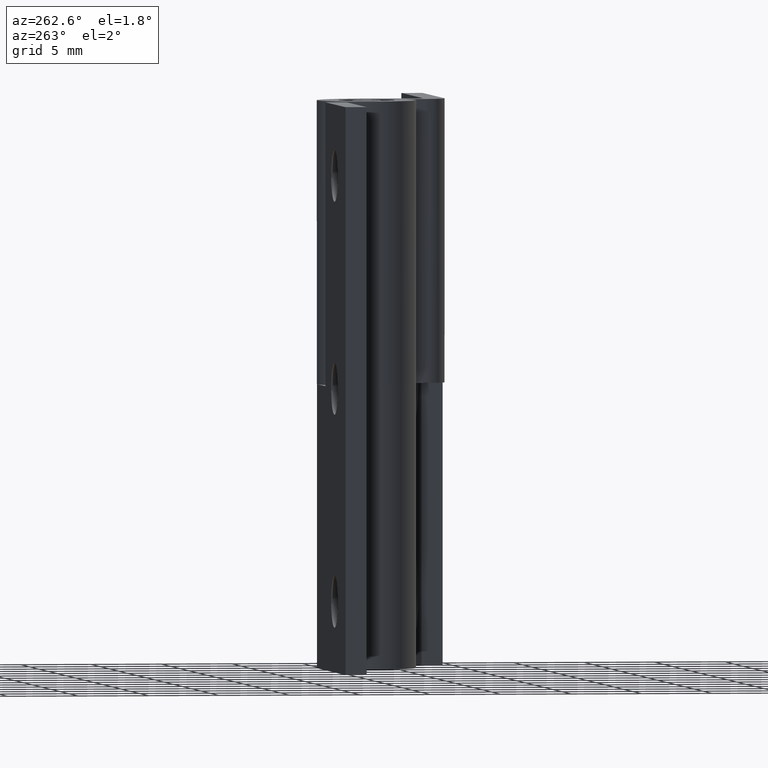
[diagram: clean part render]
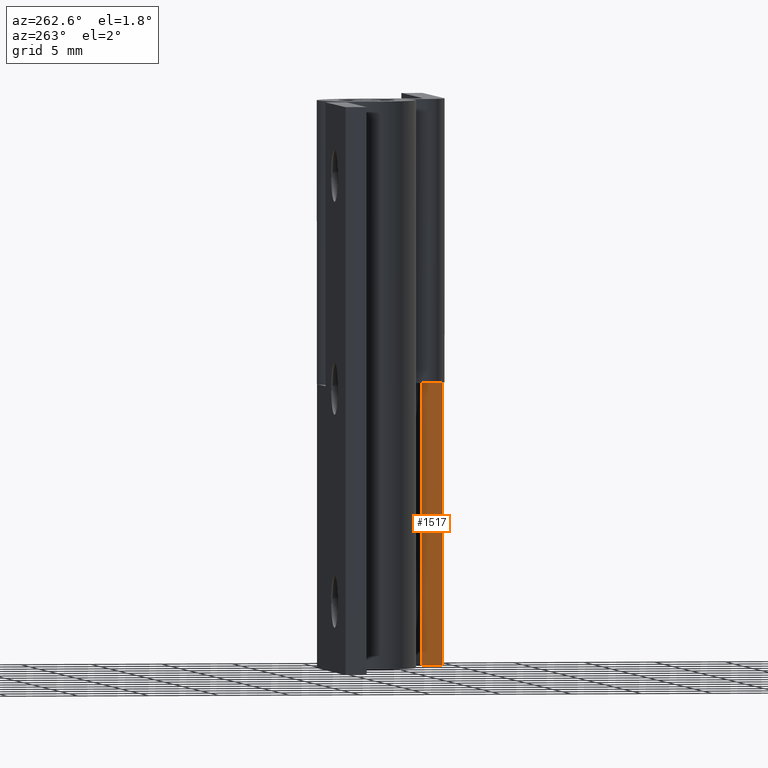
[diagram: same view with one face highlighted and labeled with its STEP entity id]
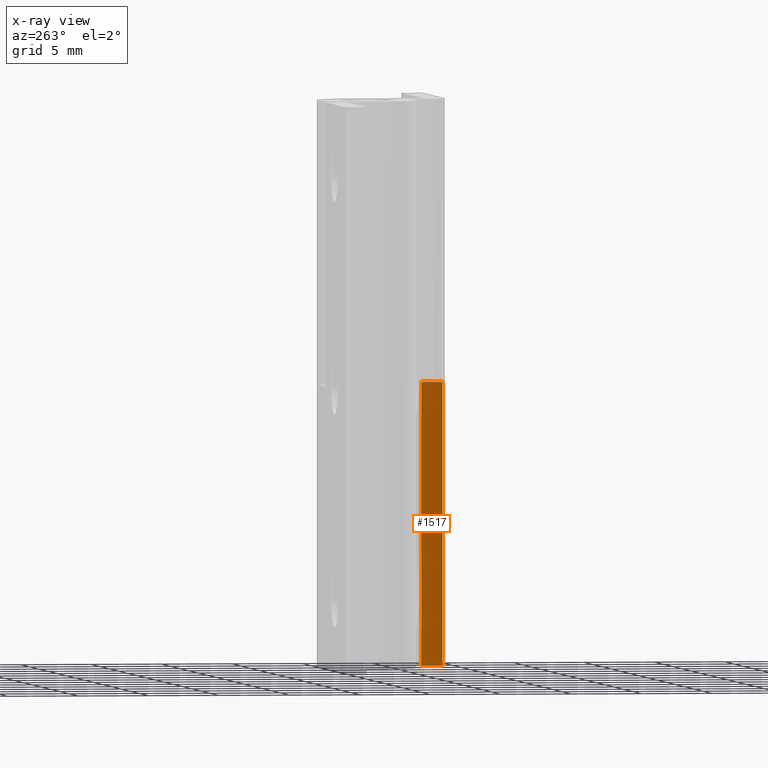
[diagram: x-ray of the same camera — body ghosted, the highlighted face saturated]
A machine part, auxiliary view. The second image highlights one B-rep face of the part: STEP entity #1517.
The next image is the same camera in x-ray: the body ghosted, the highlighted face saturated — about 0% of this face is hidden behind the body in this view.
In plain terms, the highlighted face is a freeform B-spline surface patch.
Its self-contained STEP definition (entity closure, byte-faithful):
#1482=CARTESIAN_POINT('',(4.500000000000100,-6.074924997092712,20.998999961236120));
#1483=CARTESIAN_POINT('',(4.500000000000100,-6.074924997092712,-0.999000497677922));
#1484=CARTESIAN_POINT('',(4.500000000000100,-4.425074962674103,20.998999961236120));
#1485=CARTESIAN_POINT('',(4.500000000000100,-4.425074962674103,-0.999000497677922));
#1486=B_SPLINE_SURFACE_WITH_KNOTS('',1,1,((#1482,#1484),(#1483,#1485)),.UNSPECIFIED.,.F.,.F.,.U.,(2,2),(2,2),(0.0,21.998000458914039),(0.041708334948495,0.958291687403247),.UNSPECIFIED.);
#1487=CARTESIAN_POINT('',(4.500000000000100,-4.500000000000000,0.0));
#1488=VERTEX_POINT('',#1487);
#1489=CARTESIAN_POINT('',(4.500000000000100,-6.0,0.0));
#1490=VERTEX_POINT('',#1489);
#1491=CARTESIAN_POINT('',(4.500000000000100,-4.500000000000000,0.0));
#1492=CARTESIAN_POINT('',(4.500000000000100,-6.0,0.0));
#1493=QUASI_UNIFORM_CURVE('',1,(#1491,#1492),.UNSPECIFIED.,.F.,.U.);
#1494=EDGE_CURVE('',#1488,#1490,#1493,.T.);
#1495=ORIENTED_EDGE('',*,*,#1494,.T.);
#1496=CARTESIAN_POINT('',(4.500000000000100,-6.0,20.0));
#1497=VERTEX_POINT('',#1496);
#1498=CARTESIAN_POINT('',(4.500000000000100,-6.0,0.0));
#1499=CARTESIAN_POINT('',(4.500000000000100,-6.0,20.0));
#1500=QUASI_UNIFORM_CURVE('',1,(#1498,#1499),.UNSPECIFIED.,.F.,.U.);
#1501=EDGE_CURVE('',#1490,#1497,#1500,.T.);
#1502=ORIENTED_EDGE('',*,*,#1501,.T.);
#1503=CARTESIAN_POINT('',(4.500000000000100,-4.499999999999949,20.0));
#1504=VERTEX_POINT('',#1503);
#1505=CARTESIAN_POINT('',(4.500000000000100,-4.499999999999949,20.0));
#1506=CARTESIAN_POINT('',(4.500000000000100,-6.0,20.0));
#1507=QUASI_UNIFORM_CURVE('',1,(#1505,#1506),.UNSPECIFIED.,.F.,.U.);
#1508=EDGE_CURVE('',#1504,#1497,#1507,.T.);
#1509=ORIENTED_EDGE('',*,*,#1508,.F.);
#1510=CARTESIAN_POINT('',(4.500000000000100,-4.500000000000000,0.0));
#1511=CARTESIAN_POINT('',(4.500000000000100,-4.499999999999949,20.0));
#1512=QUASI_UNIFORM_CURVE('',1,(#1510,#1511),.UNSPECIFIED.,.F.,.U.);
#1513=EDGE_CURVE('',#1488,#1504,#1512,.T.);
#1514=ORIENTED_EDGE('',*,*,#1513,.F.);
#1515=EDGE_LOOP('',(#1495,#1502,#1509,#1514));
#1516=FACE_OUTER_BOUND('',#1515,.T.);
#1517=ADVANCED_FACE('',(#1516),#1486,.F.);